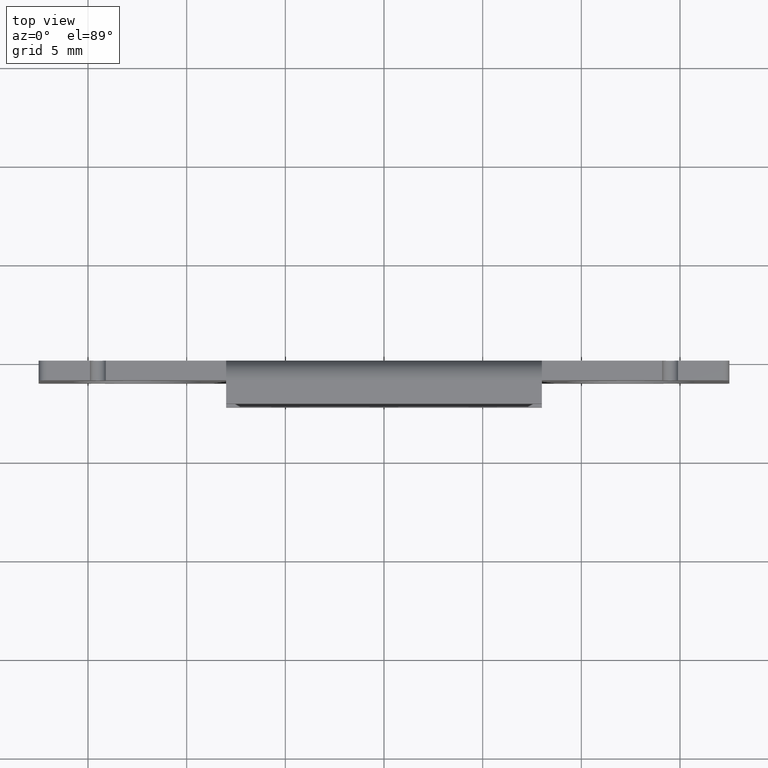
[diagram: clean part render]
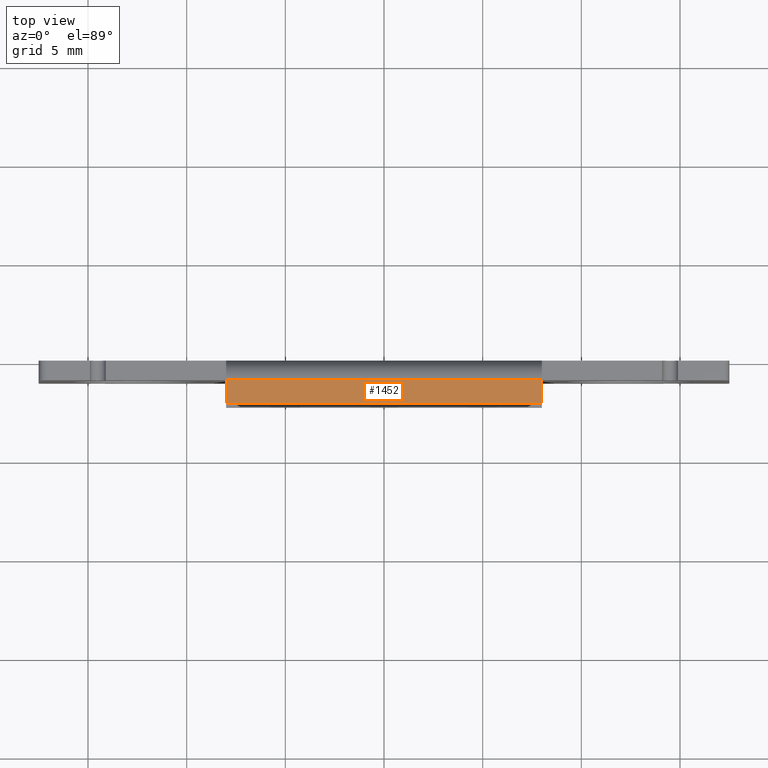
[diagram: same view with one face highlighted and labeled with its STEP entity id]
A machine part, top view. The second image highlights one B-rep face of the part: STEP entity #1452.
In plain terms, the highlighted face is a freeform B-spline surface patch.
Its self-contained STEP definition (entity closure, byte-faithful):
#1394=CARTESIAN_POINT('',(-8.0,-2.200001000000000,5.999999500000120));
#1395=VERTEX_POINT('',#1394);
#1410=CARTESIAN_POINT('',(8.0,-2.200001000000000,5.999999500000120));
#1411=VERTEX_POINT('',#1410);
#1417=CARTESIAN_POINT('',(8.0,-2.200001000000000,5.999999500000120));
#1418=CARTESIAN_POINT('',(-8.0,-2.200001000000000,5.999999500000120));
#1419=QUASI_UNIFORM_CURVE('',1,(#1417,#1418),.UNSPECIFIED.,.F.,.U.);
#1420=EDGE_CURVE('',#1411,#1395,#1419,.T.);
#1425=CARTESIAN_POINT('',(8.799199968988896,-2.259941047624164,5.999999500000120));
#1426=CARTESIAN_POINT('',(-8.799200398142338,-2.259941047624164,5.999999500000120));
#1427=CARTESIAN_POINT('',(8.799199968988896,-0.940059920189315,5.999999500000120));
#1428=CARTESIAN_POINT('',(-8.799200398142338,-0.940059920189315,5.999999500000120));
#1429=B_SPLINE_SURFACE_WITH_KNOTS('',1,1,((#1425,#1427),(#1426,#1428)),.UNSPECIFIED.,.F.,.F.,.U.,(2,2),(2,2),(0.0,17.598400367131230),(0.041708334948495,0.958291687403247),.UNSPECIFIED.);
#1430=CARTESIAN_POINT('',(-8.0,-1.000000000000014,5.999999500000120));
#1431=VERTEX_POINT('',#1430);
#1432=CARTESIAN_POINT('',(-8.0,-1.000000000000014,5.999999500000120));
#1433=CARTESIAN_POINT('',(-8.0,-2.200001000000000,5.999999500000120));
#1434=QUASI_UNIFORM_CURVE('',1,(#1432,#1433),.UNSPECIFIED.,.F.,.U.);
#1435=EDGE_CURVE('',#1431,#1395,#1434,.T.);
#1436=ORIENTED_EDGE('',*,*,#1435,.T.);
#1437=ORIENTED_EDGE('',*,*,#1420,.F.);
#1438=CARTESIAN_POINT('',(8.0,-1.000000000000014,5.999999500000120));
#1439=VERTEX_POINT('',#1438);
#1440=CARTESIAN_POINT('',(8.0,-1.000000000000014,5.999999500000120));
#1441=CARTESIAN_POINT('',(8.0,-2.200001000000000,5.999999500000120));
#1442=QUASI_UNIFORM_CURVE('',1,(#1440,#1441),.UNSPECIFIED.,.F.,.U.);
#1443=EDGE_CURVE('',#1439,#1411,#1442,.T.);
#1444=ORIENTED_EDGE('',*,*,#1443,.F.);
#1445=CARTESIAN_POINT('',(8.0,-1.000000000000014,5.999999500000120));
#1446=CARTESIAN_POINT('',(-8.0,-1.000000000000014,5.999999500000120));
#1447=QUASI_UNIFORM_CURVE('',1,(#1445,#1446),.UNSPECIFIED.,.F.,.U.);
#1448=EDGE_CURVE('',#1439,#1431,#1447,.T.);
#1449=ORIENTED_EDGE('',*,*,#1448,.T.);
#1450=EDGE_LOOP('',(#1436,#1437,#1444,#1449));
#1451=FACE_OUTER_BOUND('',#1450,.T.);
#1452=ADVANCED_FACE('',(#1451),#1429,.F.);